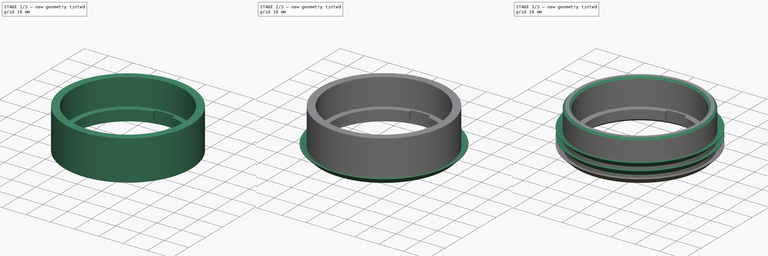
[diagram: build sequence overview — one tinted view per stage of 3, left to right]
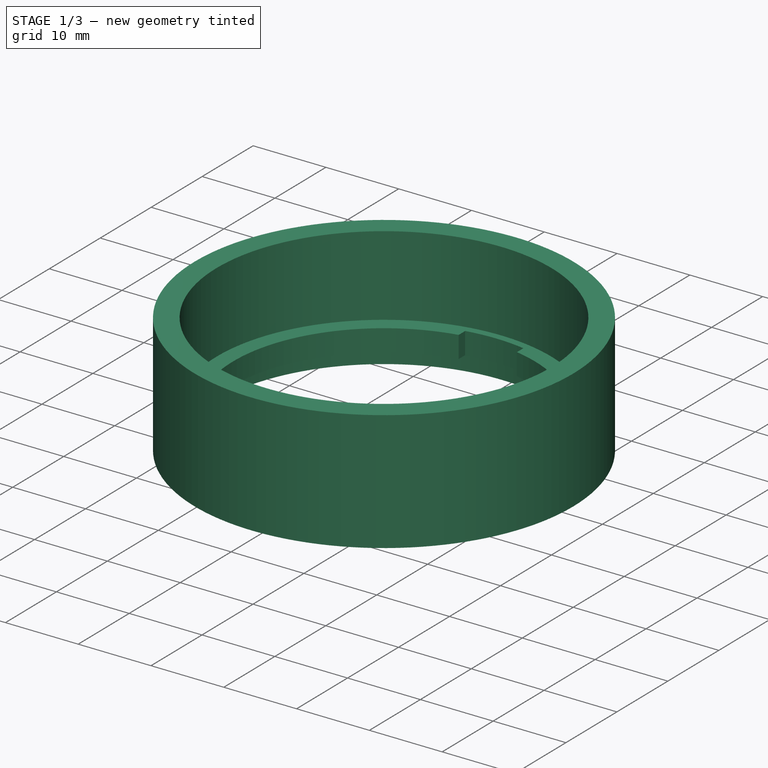
[diagram: stage 1 of 3 — iso view after this stage's code; geometry added in this stage tinted green]
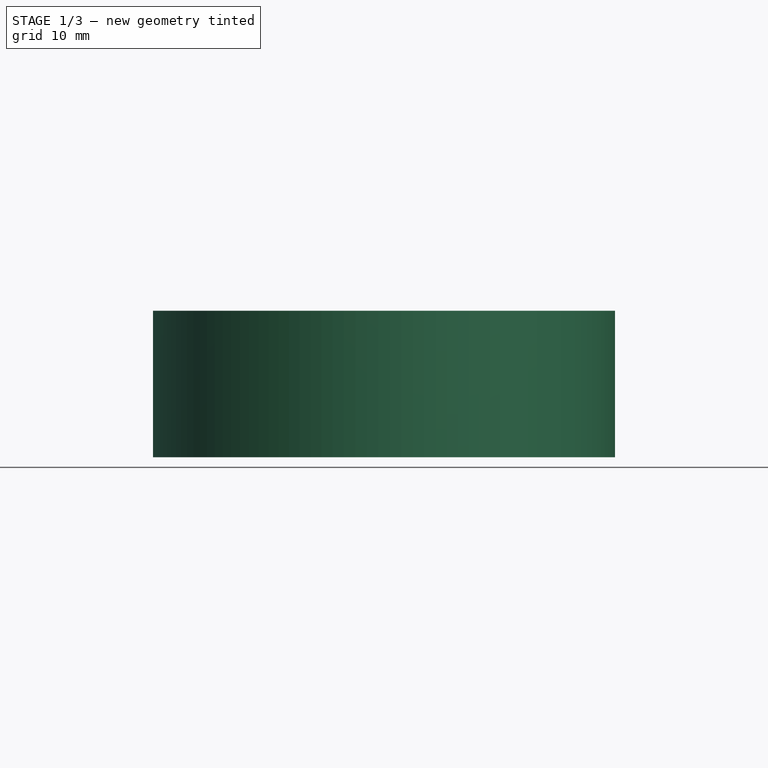
[diagram: stage 1 of 3 — front view after this stage's code; geometry added in this stage tinted green]
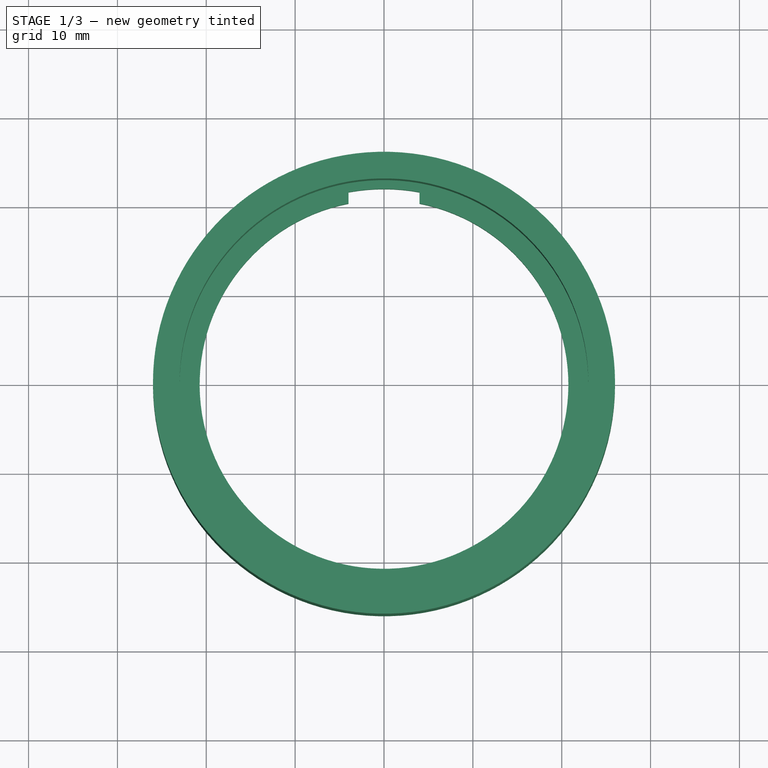
[diagram: stage 1 of 3 — top view after this stage's code; geometry added in this stage tinted green]
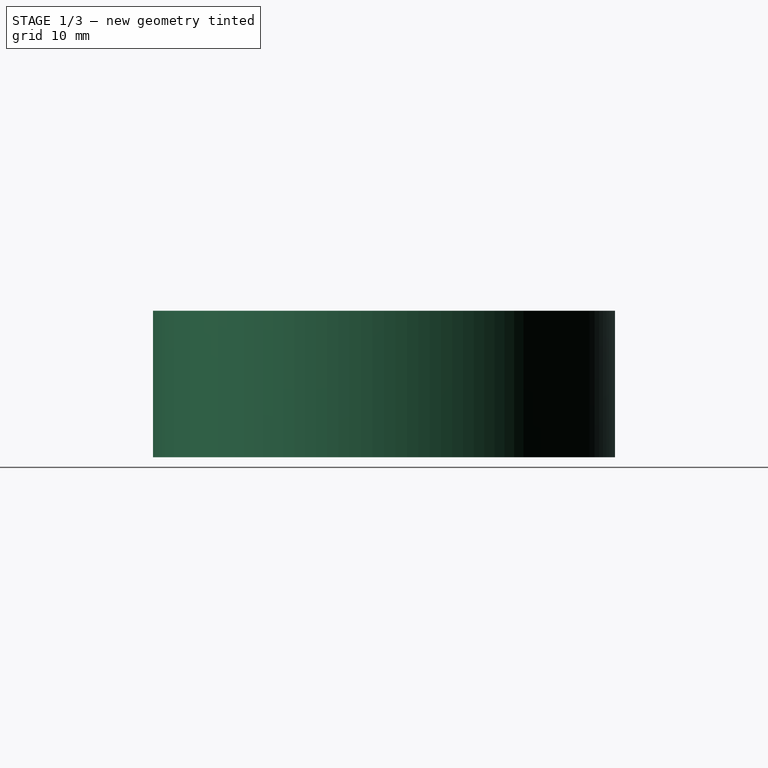
[diagram: stage 1 of 3 — right view after this stage's code; geometry added in this stage tinted green]
FCSTD DOCUMENT  (FreeCAD 0.20R28866 +2 (Git))
Label: DosenHygrometerHalter
License: All rights reserved
LicenseURL: http://en.wikipedia.org/wiki/All_rights_reserved
objects: Sketcher::SketchObject×3, PartDesign::Revolution×2, PartDesign::Pocket×1, PartDesign::PolarPattern×1, PartDesign::LinearPattern×1, PartDesign::Chamfer×1, PartDesign::Body×1
note: 14 computed .brp shape members not serialized (recipe doc carries the construction recipe); baked Part::Feature solids carry a one-line shape summary decoded from their .brp

FEATURE [Sketcher::SketchObject] Sketch
  FullyConstrained = true
  MapMode = 5
  Placement = pos=(0,0,0) rot=(1,0,0;1.5708rad)
  Support = -> [XZ_Plane]
  sketch-geometry (8):
    g0: LineSegment StartX=20.75 StartY=2.5 StartZ=0 EndX=23 EndY=2.5 EndZ=0
    g1: LineSegment StartX=23 StartY=2.5 StartZ=0 EndX=23 EndY=0 EndZ=0
    g2: LineSegment StartX=23 StartY=0 StartZ=0 EndX=26 EndY=0 EndZ=0
    g3: LineSegment StartX=26 StartY=0 StartZ=0 EndX=26 EndY=16.5 EndZ=0
    g4: LineSegment StartX=26 StartY=16.5 StartZ=0 EndX=23 EndY=16.5 EndZ=0
    g5: LineSegment StartX=20.75 StartY=2.5 StartZ=0 EndX=20.75 EndY=5.5 EndZ=0
    g6: LineSegment StartX=20.75 StartY=5.5 StartZ=0 EndX=23 EndY=5.5 EndZ=0
    g7: LineSegment StartX=23 StartY=5.5 StartZ=0 EndX=23 EndY=16.5 EndZ=0
  constraints (24):
    c: Horizontal(g0)
    c: Coincident(g0,g1)
    c: PointOnObject(g1,g-1)
    c: Vertical(g1)
    c: Coincident(g1,g2)
    c: PointOnObject(g2,g-1)
    c: Coincident(g2,g3)
    c: Vertical(g3)
    c: Coincident(g3,g4)
    c: Horizontal(g4)
    c: DistanceY(g3,g3) = 16.5
    c: DistanceY(g1,g1) = 2.5
    c: DistanceX(g-1,g2) = 26  'radius außen'
    c: DistanceX(g-1,g1) = 23  'radius2'
    c: DistanceX(g-1,g0) = 20.75
    c: Coincident(g0,g5)
    c: Vertical(g5)
    c: Coincident(g5,g6)
    c: Horizontal(g6)
    c: Coincident(g6,g7)
    c: Coincident(g7,g4)
    c: Vertical(g7)
    c: DistanceY(g5,g5) = 3
    c: Vertical(g6,g0)
FEATURE [PartDesign::Revolution] Revolution
  Angle = 360
  Axis = (0,-2e-16,1)
  Base = (0,0,0)
  Placement = pos=(0,0,0) rot=(1,0,0;1.5708rad)
  Profile = -> Sketch
  ReferenceAxis = -> Sketch [V_Axis]
  Refine = true
  Reversed = true
FEATURE [Sketcher::SketchObject] Sketch001
  FullyConstrained = true
  MapMode = 5
  Support = -> [XY_Plane]
  expr: Constraints[10] = <<Sketch>>.Constraints.radius2 - 1mm
  sketch-geometry (4):
    g0: LineSegment StartX=-4 StartY=21.6333 StartZ=0 EndX=-4 EndY=11.6333 EndZ=0
    g1: LineSegment StartX=-4 StartY=11.6333 StartZ=0 EndX=4 EndY=11.6333 EndZ=0
    g2: LineSegment StartX=4 StartY=11.6333 StartZ=0 EndX=4 EndY=21.6333 EndZ=0
    g3: ArcOfCircle CenterX=0 CenterY=0 CenterZ=0 NormalX=0 NormalY=0 NormalZ=1 AngleXU=0 Radius=22 StartAngle=1.38796 EndAngle=1.75363
  constraints (12):
    c: Coincident(g0,g1)
    c: Coincident(g1,g2)
    c: Coincident(g3,g0)
    c: Coincident(g3,g2)
    c: Coincident(g3,g-1)
    c: Parallel(g0,g2)
    c: Equal(g0,g2)
    c: Symmetric(g0,g2,g-2)
    c: Vertical(g0)
    c: DistanceX(g1,g1) = 8
    c: Radius(g3) = 22
    c: DistanceY(g2,g2) = 10
FEATURE [PartDesign::Pocket] Pocket
  BaseFeature = -> Revolution
  Direction = (0,0,-1)
  Inverse = false
  Length = 5
  Length2 = 100
  Placement = pos=(0,0,0) rot=(1,0,0;1.5708rad)
  Profile = -> Sketch001
  ReferenceAxis = -> Sketch001 [N_Axis]
  Refine = true
  Reversed = true
  Type = 1
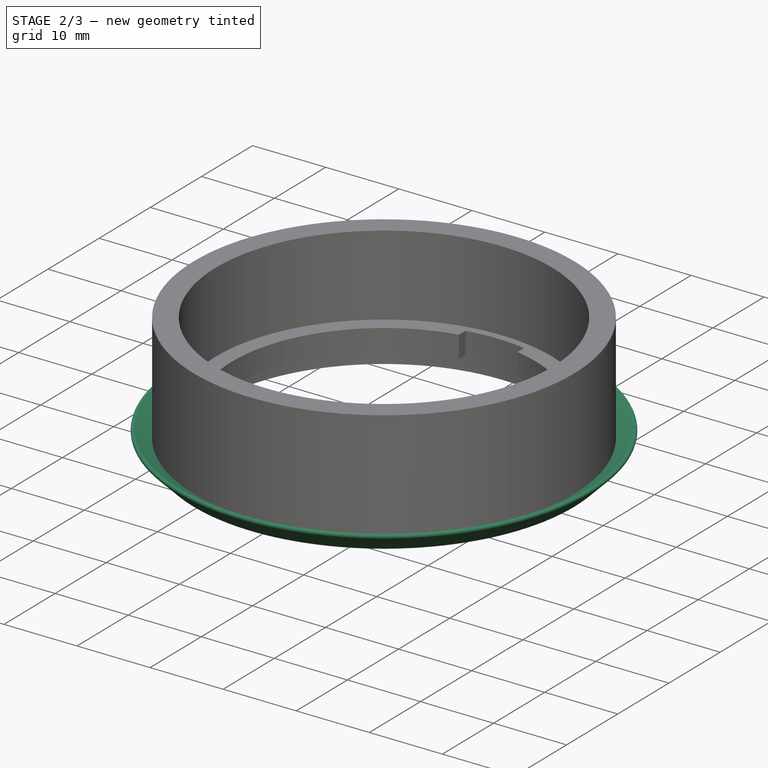
[diagram: stage 2 of 3 — iso view after this stage's code; geometry added in this stage tinted green]
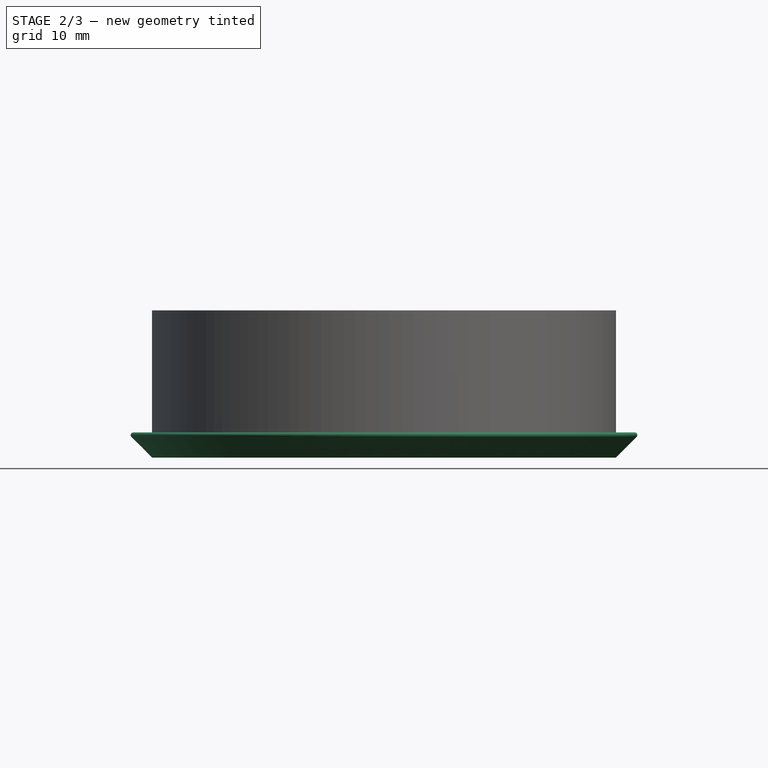
[diagram: stage 2 of 3 — front view after this stage's code; geometry added in this stage tinted green]
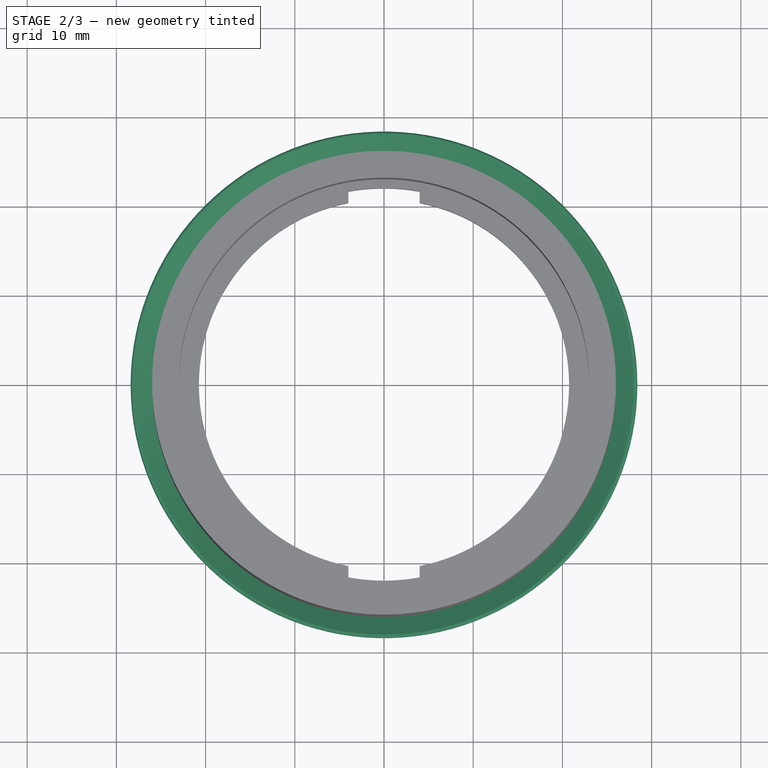
[diagram: stage 2 of 3 — top view after this stage's code; geometry added in this stage tinted green]
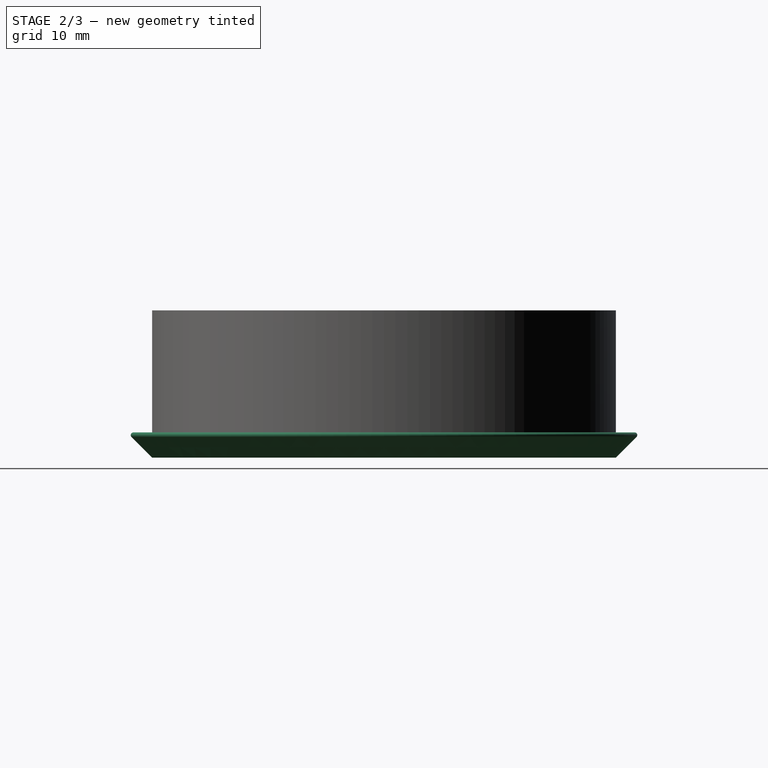
[diagram: stage 2 of 3 — right view after this stage's code; geometry added in this stage tinted green]
FEATURE [PartDesign::PolarPattern] PolarPattern
  Angle = 360
  Axis = -> Z_Axis
  BaseFeature = -> Pocket
  Occurrences = 2
  Originals = -> [Pocket]
  Placement = pos=(0,0,0) rot=(1,0,0;1.5708rad)
  Refine = true
FEATURE [Sketcher::SketchObject] Sketch002
  ExternalGeometry = -> [Sketch]
  FullyConstrained = true
  MapMode = 5
  Placement = pos=(0,0,0) rot=(1,0,0;1.5708rad)
  Support = -> [XZ_Plane]
  sketch-geometry (5):
    g0: LineSegment StartX=26 StartY=0 StartZ=0 EndX=28.3121 EndY=2.31213 EndZ=0
    g1: ArcOfCircle CenterX=28.1 CenterY=2.52426 CenterZ=0 NormalX=0 NormalY=0 NormalZ=1 AngleXU=0 Radius=0.3 StartAngle=5.49779 EndAngle=8.39972
    g2: LineSegment StartX=27.9443 StartY=2.78069 StartZ=0 EndX=26 EndY=1.6 EndZ=0
    g3: LineSegment StartX=26 StartY=1.6 StartZ=0 EndX=26 EndY=0 EndZ=0
    g4: LineSegment StartX=28.4 StartY=0 StartZ=0 EndX=28.4 EndY=5 EndZ=0
  constraints (14):
    c: Tangent(g0,g1) = -1.5708
    c: Tangent(g1,g2) = -1.5708
    c: Coincident(g2,g3)
    c: Coincident(g3,g0)
    c: Vertical(g3)
    c: PointOnObject(g4,g-1)
    c: Vertical(g4)
    c: Tangent(g1,g4)
    c: DistanceX(g-1,g4) = 28.4
    c: Angle(g0,g-1) = 2.35619
    c: Radius(g1) = 0.3
    c: DistanceY(g3,g3) = 1.6
    c: DistanceY(g4,g4) = 5
    c: Coincident(g-3,g0)
FEATURE [PartDesign::Revolution] Revolution001
  Angle = 360
  Axis = (-3e-16,3e-16,1)
  Base = (0,0,0)
  BaseFeature = -> PolarPattern
  Placement = pos=(0,0,0) rot=(1,0,0;1.5708rad)
  Profile = -> Sketch002
  ReferenceAxis = -> Z_Axis
  Refine = true
  Reversed = true
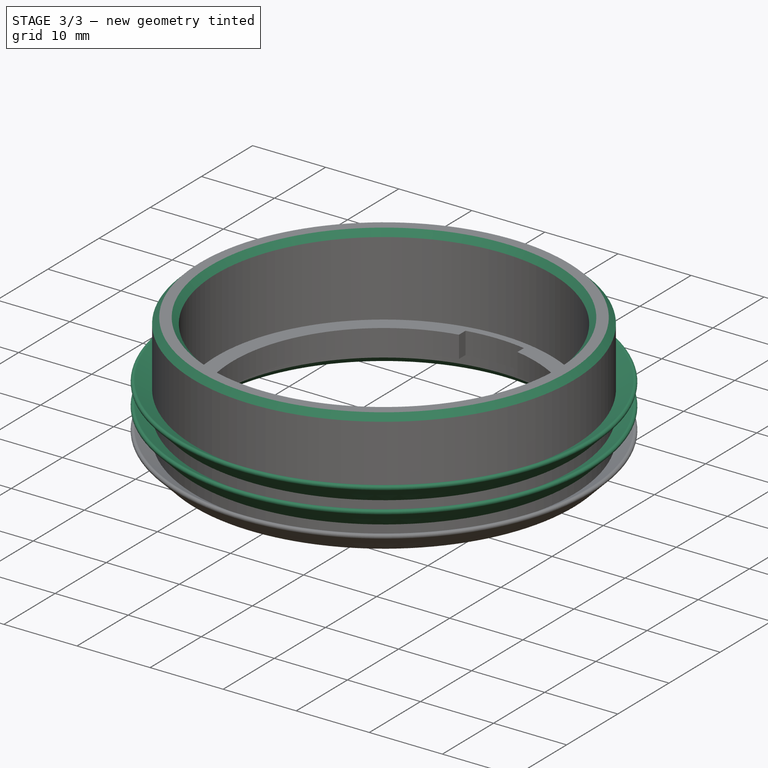
[diagram: stage 3 of 3 — iso view after this stage's code; geometry added in this stage tinted green]
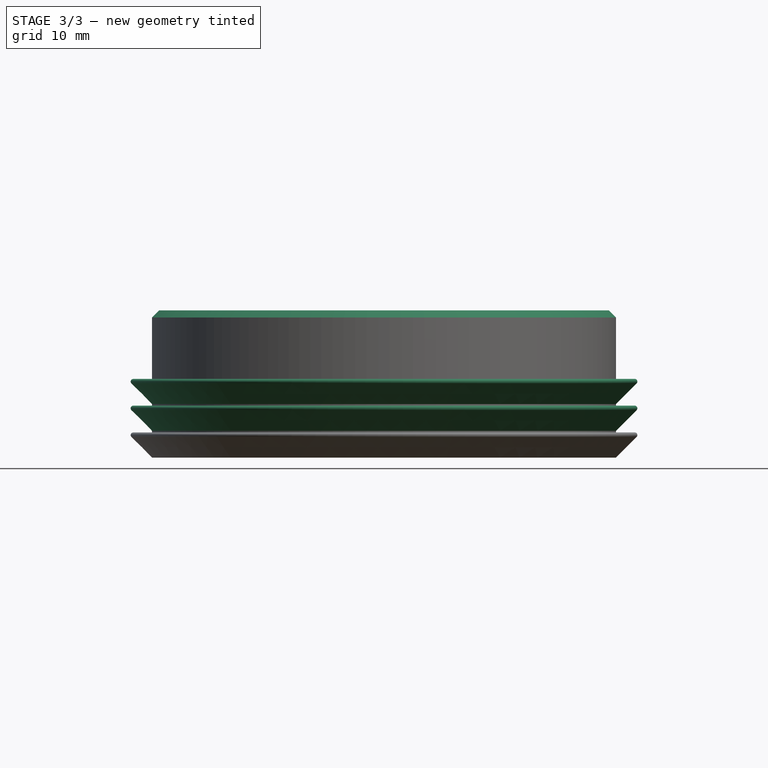
[diagram: stage 3 of 3 — front view after this stage's code; geometry added in this stage tinted green]
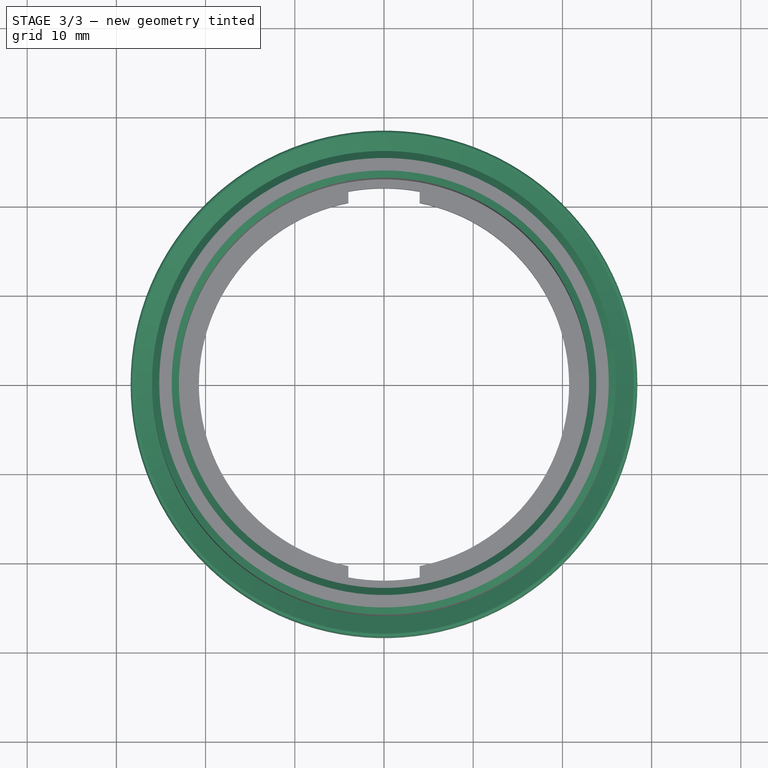
[diagram: stage 3 of 3 — top view after this stage's code; geometry added in this stage tinted green]
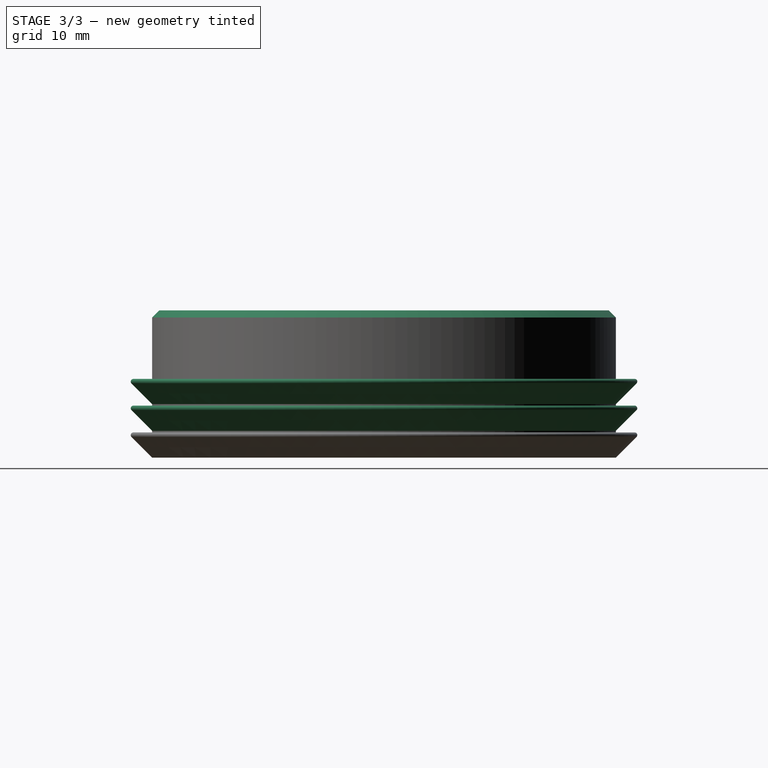
[diagram: stage 3 of 3 — right view after this stage's code; geometry added in this stage tinted green]
FEATURE [PartDesign::LinearPattern] LinearPattern
  BaseFeature = -> Revolution001
  Direction = -> Z_Axis
  Length = 6
  Occurrences = 3
  Originals = -> [Revolution001]
  Placement = pos=(0,0,0) rot=(1,0,0;1.5708rad)
  Refine = true
FEATURE [PartDesign::Chamfer] Chamfer
  Angle = 45
  Base = -> LinearPattern [Edge34,Edge38,Edge11]
  BaseFeature = -> LinearPattern
  ChamferType = 0
  FlipDirection = false
  Placement = pos=(0,0,0) rot=(1,0,0;1.5708rad)
  Refine = true
  Size = 0.8
  Size2 = 1
  SupportTransform = false
  UseAllEdges = false
FEATURE [PartDesign::Body] Body  label="Ring"
  Group = -> [Sketch,Revolution,Sketch001,Pocket,PolarPattern,Sketch002,Revolution001,LinearPattern,Chamfer]
  Origin = -> Origin
  Tip = -> Chamfer
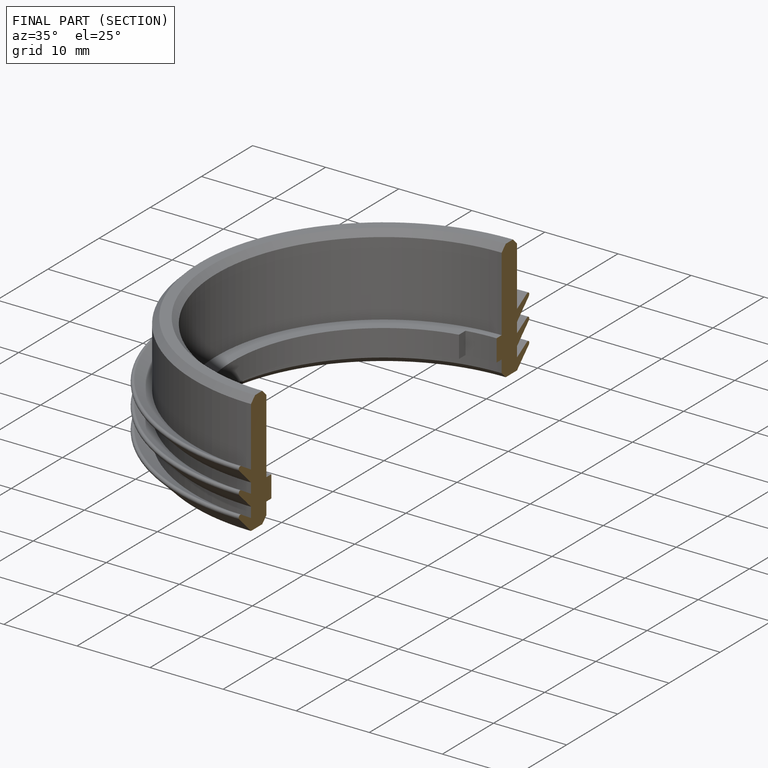
[diagram: finished part — half-section view (interior)]
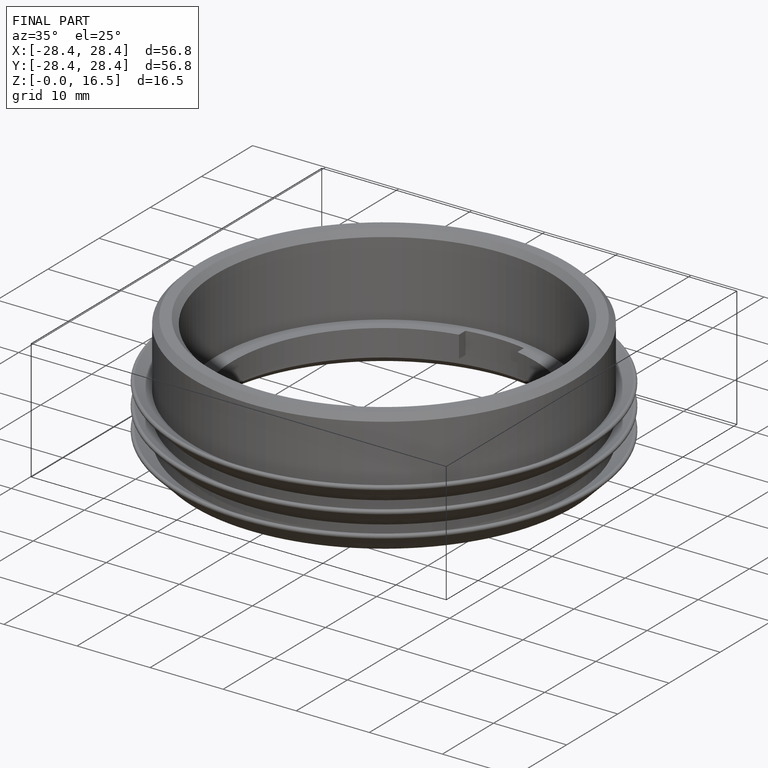
[diagram: finished part — iso view with bounding-box wireframe]
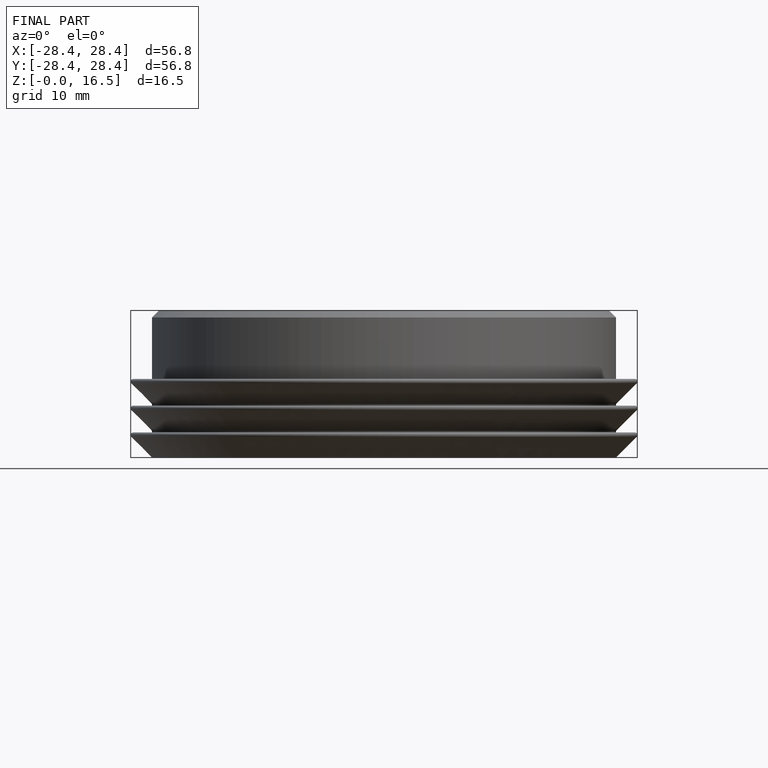
[diagram: finished part — front view with bounding-box wireframe]
